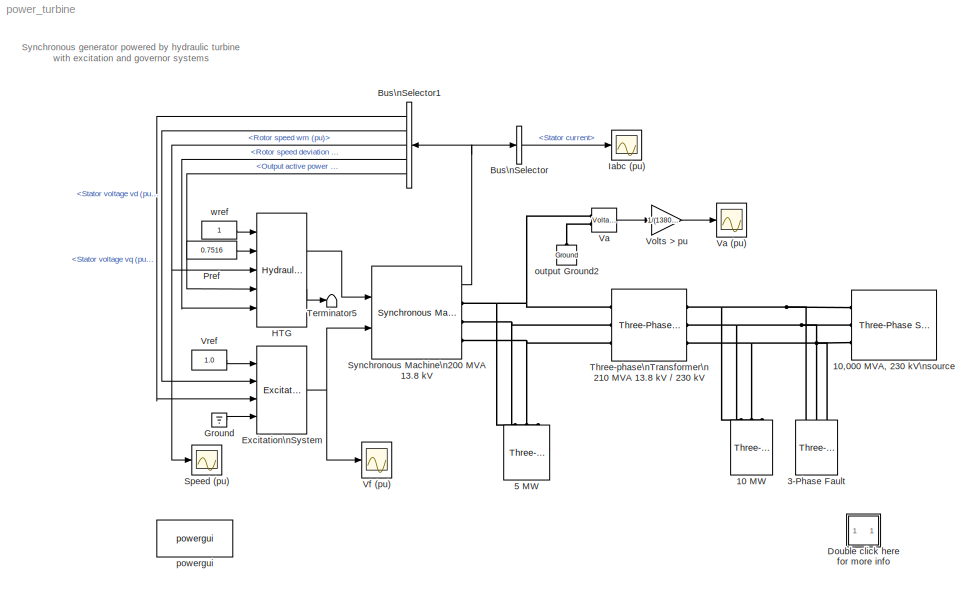
MODEL power_turbine
KIND model
BLOCK [Scope]  Iabc (pu)
  DataFormat = Array
  LimitDataPoints = off
  NumInputPorts = 1
  Ports = [1]
  SaveName = ScopeData1
  TickLabels = on
  TimeRange = 0.2
  YMax = 6
BLOCK [Scope]  Speed (pu)
  DataFormat = Array
  LimitDataPoints = off
  NumInputPorts = 1
  Ports = [1]
  SaveName = Pm
  TickLabels = on
  TimeRange = 2
  YMax = 1.02
  YMin = 0.98
BLOCK [Reference] 10 MW  REF=powerlib/Elements/Three-Phase\nParallel RLC Load
  ActivePower = 10e6
  AttributesFormatString = \\n
  CapacitivePower = 0
  Configuration = Y (grounded)
  InductivePower = 0
  LConnTagsString = A|B|C
  LeftPortType = p1
  Measurements = None
  NominalFrequency = 60
  NominalVoltage = 230e3
  PhysicalDomain = powersysdomain
  Ports = [0, 0, 0, 0, 0, 3]
  RightPortType = p1
  SourceBlock = powerlib/Elements/Three-Phase\nParallel RLC Load
  SourceType = Three-Phase Parallel RLC Load
  SubClassName = unknown
BLOCK [Reference] 10,000 MVA, 230 kV\nsource  REF=powerlib/Electrical\nSources/Three-Phase Source
  BaseVoltage = 230e3
  Frequency = 60
  Inductance = 0.0140
  InternalConnection = Yg
  PhaseAngle = 0
  Ports = [0, 0, 0, 0, 0, 0, 3]
  Resistance = 0.529
  ShortCircuitLevel = 10000e6
  ShowPortLabels = on
  SourceBlock = powerlib/Electrical\nSources/Three-Phase Source
  SourceType = Three-Phase Source
  SpecifyImpedance = on
  Voltage = 230e3
  XRratio = 10
BLOCK [Reference] 3-Phase Fault  REF=powerlib/Elements/Three-Phase Fault
  External = off
  FaultA = on
  FaultB = on
  FaultC = on
  FaultResistance = 1e-3
  GroundFault = on
  GroundResistance = 1e-3
  InitialStates = [1 1 0]
  Measurements = None
  Ports = [0, 0, 0, 0, 0, 3]
  ShowPortLabels = on
  SnubberCapacitance = inf
  SnubberResistance = inf
  SourceBlock = powerlib/Elements/Three-Phase Fault
  SourceType = Three-Phase Fault
  SwitchStatus = [1 0]
  SwitchTimes = [ 0.1 0.2]
BLOCK [Reference] 5 MW  REF=powerlib/Elements/Three-Phase\nParallel RLC Load
  ActivePower = 5e6
  AttributesFormatString = \\n
  CapacitivePower = 0
  Configuration = Y (grounded)
  InductivePower = 0
  LConnTagsString = A|B|C
  LeftPortType = p1
  Measurements = None
  NominalFrequency = 60
  NominalVoltage = 13.8e3
  PhysicalDomain = powersysdomain
  Ports = [0, 0, 0, 0, 0, 3]
  RightPortType = p1
  SourceBlock = powerlib/Elements/Three-Phase\nParallel RLC Load
  SourceType = Three-Phase Parallel RLC Load
  SubClassName = unknown
BLOCK [BusSelector] Bus\nSelector
  DialogController = Simulink.DDGSource_Bus
  OutputSignals = Stator current
  Ports = [1, 1]
BLOCK [BusSelector] Bus\nSelector1
  DialogController = Simulink.DDGSource_Bus
  OutputSignals = dq0 components.Stator voltage  vq (pu),dq0 components.Stator voltage  vd (pu),Mechanical.Rotor speed  wm  (pu),Mechanical.Rotor speed deviation  dw (pu),Output active power   Peo (pu)
  Ports = [1, 5]
BLOCK [SubSystem] Double click here for more info
  MaskDisplay = disp('?')
  MaskIconFrame = on
  MaskIconOpaque = on
  MaskIconRotate = none
  MaskIconUnits = autoscale
  MinAlgLoopOccurrences = off
  Ports = []
  RTWSystemCode = Auto
  TreatAsAtomicUnit = off
BLOCK [Reference] Excitation\nSystem  REF=powerlib/Machines/Excitation\nSystem
  Ports = [4, 1]
  ShowPortLabels = on
  SourceBlock = powerlib/Machines/Excitation\nSystem
  SourceType = Excitation System
  damp = [ 0.001, 0.1 ]
  exc = [ 1, 0 ]
  lim = [ -11.5, 11.5, 0 ]
  reg = [ 300, 0.001 ]
  sat = [ 0, 0 ]
  tgr = [ 0, 0 ]
  tr = 20e-3
  v0 = [1,1.0]
BLOCK [Ground] Ground
BLOCK [Reference] HTG  REF=powerlib/Machines/Hydraulic Turbine\nand Governor
  Ports = [5, 2]
  ShowPortLabels = on
  SourceBlock = powerlib/Machines/Hydraulic Turbine\nand Governor
  SourceType = Hydraulic Turbine and Governor
  dref = 0
  gate = [  0.01  0.97518  -0.1  0.1 ]
  hyd = [  0  2.67  ]
  po = 1
  reg = [  0.05  1.163  0.105  0  0.01  ]
  sm = [ 10/3  0.07 ]
BLOCK [Constant] Pref
  Value = 0.7516
BLOCK [Reference] Synchronous Machine\n200 MVA 13.8 kV  REF=powerlib/Machines/Synchronous Machine\npu Standard
  AttributesFormatString = \\n\\n
  InitialConditions = [0 0 0 0 0 0 0 0 1]
  LoadFlowParameters = [1 150000000 0 0]
  Mechanical = [ 3.2 0  32]
  NominalParameters = [ 200E6  13800   60 ]
  Ports = [2, 1, 0, 0, 0, 0, 3]
  PresetModel = No
  Reactances1 = [ 31 32 33 34 35 36 37 ]
  Reactances2 = [ 1.305, 0.296, 0.252, 0.474, 0.243, 0.18 ]
  RotorType = Salient-pole
  Saturation = [0.6404,0.7127,0.8441,0.9214,0.9956,1.082,1.19,1.316,1.457;0.7,0.7698,0.8872,0.9466,0.9969,1.046,1.1,1.151,1.201]
  SetSaturation = off
  ShowDetailedParameters = on
  ShowPortLabels = on
  SourceBlock = powerlib/Machines/Synchronous Machine\npu Standard
  SourceType = Synchronous Machine
  StatorResistance = 2.8544e-3
  TimeConstants1 = []
  TimeConstants2 = []
  TimeConstants3 = []
  TimeConstants4 = []
  TimeConstants5 = [ 1.01, 0.053, 0.1 ]
  TimeConstants6 = []
  TimeConstants7 = []
  TimeConstants8 = []
  Units = 0.5
  dAxisTimeConstants = Short-circuit
  qAxisTimeConstants = Open-circuit
BLOCK [Terminator] Terminator5
BLOCK [Reference] Three-phase\nTransformer\n210 MVA 13.8 kV // 230 kV  REF=powerlib/Elements/Three-Phase\nTransformer\n(Two Windings)
  AttributesFormatString = \\n
  DataFile = 'hysteresis'
  Hysteresis = off
  InitialFluxes = [ 0.8 , -0.8 , 0.7 ]
  Lm = 500
  Measurements = None
  NominalPower = [ 210e6 60 ]
  Ports = [0, 0, 0, 0, 0, 3, 3]
  Rm = 500
  Saturation = [ 0,0  ;  0.005,1.2  ;  1.0,1.4 ]
  SetInitialFlux = off
  SetSaturation = off
  ShowPortLabels = on
  SourceBlock = powerlib/Elements/Three-Phase\nTransformer\n(Two Windings)
  SourceType = Three-Phase Transformer (Two Windings)
  TransfoNumber = 0
  Winding1 = [ 13.8e3 0.0027  0.08]
  Winding1Connection = Delta (D1)
  Winding2 = [ 230e3 0.0027 0.08]
  Winding2Connection = Yg
BLOCK [Reference] Va  REF=powerlib/Measurements/Voltage Measurement
  AttributesFormatString = \\n
  OutputType = Magnitude
  PSBequivalent = 0
  PhasorSimulation = off
  Ports = [0, 1, 0, 0, 0, 2]
  ShowPortLabels = on
  SourceBlock = powerlib/Measurements/Voltage Measurement
  SourceType = Voltage Measurement
  Tag = PoWeRsYsTeMmEaSuReMeNt
BLOCK [Scope] Va (pu)
  DataFormat = Array
  LimitDataPoints = off
  NumInputPorts = 1
  Ports = [1]
  SaveName = vf
  TickLabels = on
  TimeRange = 0.2
  YMax = 1.25
  YMin = -1.25
  ZoomMode = yonly
BLOCK [Scope] Vf (pu)
  DataFormat = Array
  LimitDataPoints = off
  NumInputPorts = 1
  Ports = [1]
  SaveName = vf
  TickLabels = on
  TimeRange = 2
  YMax = 15
  YMin = -10
  ZoomMode = yonly
BLOCK [Gain] Volts > pu
  Gain = 1/(13800/sqrt(3)*sqrt(2))
BLOCK [Constant] Vref
  Value = 1.0
BLOCK [Reference] output Ground2  REF=powerlib/Elements/Ground
  AttributesFormatString = \\n
  LConnTagsString = a
  LeftPortType = p1
  PhysicalDomain = powersysdomain
  Ports = [0, 0, 0, 0, 0, 1]
  RightPortType = p1
  SourceBlock = powerlib/Elements/Ground
  SourceType = Ground
  SubClassName = unknown
BLOCK [Reference] powergui  REF=powerlib/powergui
  DisplayStyle = off
  Frange = logspace(0,3,50)
  FreqAxis = off
  MaxFrequency = 1000
  Ports = []
  Priority = 2
  RmsSteady = 1
  ShowPortLabels = on
  SourceBlock = powerlib/powergui
  SourceType = PSB option menu block
  StartTime = 0.0
  Ts = 0
  Xlog = off
  Ylog = off
  ZoomFFT = on
  cycles = 2
  display = off
  echomessages = on
  frequency = 60
  frequencyindice = 60
  frequencyindicesteady = 1
  fundamental = 60
  methode = off
  save = off
  variable = ZData
BLOCK [Constant] wref
ANNOTATION (root): Synchronous generator powered by hydraulic turbine\n with excitation and governor systems
ANNOTATION Double click here for more info: 1
ANNOTATION Double click here for more info: 2
ANNOTATION Double click here for more info: 3
ANNOTATION Double click here for more info: 4
ANNOTATION Double click here for more info: A three-phase generator rated 200 MVA, 13.8 kV, 112.5 rpm is connected to a 230 kV, 10,000 MVA network through a Delta-Wye 210 MVA transformer. \nAt t = 0.1 s, a three-phase to ground fault occurs on the 230 kV bus. The fault is cleared after 6 cycles (t = 0.2 s). \nDuring this demo, you will initialize the system in order to start in steady-state with the generator supplying 150 MW of active powe...<+91ch>
ANNOTATION Double click here for more info: Circuit Description
ANNOTATION Double click here for more info: Demonstration
ANNOTATION Double click here for more info: In order to start the simulation in steady state with the HTG and excitation system connected, these two Simulink blocks must also be initialized\naccording to the values calculated by the load flow. This initialization is automatically performed when you execute the Load Flow, as long as you connect at\nthe Pm and Vf inputs of the machine either Constant blocks or regulation blocks from the machi...<+339ch>
ANNOTATION Double click here for more info: In order to start the simulation in steady-state you must initialize the synchronous machine for the desired load flow. \nOpen the Powergui and select 'Load Flow and Machine Initialization' . A new window appears. The machine 'Bus type' should be already initialized as\n'PV generator', indicating that the load flow will be performed with the machine controlling the active power and its terminal vo...<+74ch>
ANNOTATION Double click here for more info: Load flow : Terminal voltage (Vrms) = 13800; Active Power = 150e6. Then press the 'Execute Load Flow' button.
ANNOTATION Double click here for more info: Louis-A. Dessaint and R. Champagne (Ecole de Technologie Superieure, Montreal)
ANNOTATION Double click here for more info: Once the load flow has been solved the phasors of AB and BC machine voltages as well as the currents flowing out of phases A and B are updated.\nThe machine reactive power, mechanical power and field voltage requested to supply the electrical power should also be displayed: \nQ = 3.4 Mvar; Pmec = 150.32 MW (0.7516 pu); field voltage Ef = 1.291 pu.
ANNOTATION Double click here for more info: Open the 4 scopes and restart the simulation. The simulation now starts in steady state.\nObserve that the terminal voltage Va is 1.0 p.u. at the beginning of the simulation. It falls to about 0.4 pu during the fault and returns to nominal \nquickly after the fault is cleared. This quick response in terminal voltage is due to the fact that the Excitation System output Vf can go as high as 11.5 pu\...<+329ch>
ANNOTATION Double click here for more info: Start Simulation and observe the three machine currents on the Iabc scope. If the 9 parameters defining initial conditions \nfor the Synchronous Machine are set at zero or not set correctly, the simulation will not start in steady state.
ANNOTATION Double click here for more info: This demonstration illustrates use of the synchronous machine associated with\nthe Hydraulic Turbine and Governor (HTG) and Excitation System blocks and use of\nthe Load Flow to initialize machine currents
LINE Bus\nSelector1:1 -> Excitation\nSystem:3
LINE Bus\nSelector1:2 -> Excitation\nSystem:2
NET Bus\nSelector1:3 ->  Speed (pu):1, HTG:3
LINE Bus\nSelector1:4 -> HTG:5
LINE Bus\nSelector1:5 -> HTG:4
LINE Bus\nSelector:1 ->  Iabc (pu):1
NET Excitation\nSystem:1 -> Synchronous Machine\n200 MVA 13.8 kV:2, Vf (pu):1
LINE Ground:1 -> Excitation\nSystem:4
LINE HTG:1 -> Synchronous Machine\n200 MVA 13.8 kV:1
LINE HTG:2 -> Terminator5:1
LINE Pref:1 -> HTG:2
NET Synchronous Machine\n200 MVA 13.8 kV:1 -> Bus\nSelector1:1, Bus\nSelector:1
LINE Va:1 -> Volts > pu:1
LINE Volts > pu:1 -> Va (pu):1
LINE Vref:1 -> Excitation\nSystem:1
LINE wref:1 -> HTG:1
PNET net1: 10 MW:LConn1 -- 10,000 MVA, 230 kV\nsource:RConn1 -- 3-Phase Fault:LConn1 -- Three-phase\nTransformer\n210 MVA 13.8 kV // 230 kV:RConn1
PNET net2: 10 MW:LConn2 -- 10,000 MVA, 230 kV\nsource:RConn2 -- 3-Phase Fault:LConn2 -- Three-phase\nTransformer\n210 MVA 13.8 kV // 230 kV:RConn2
PNET net3: 10 MW:LConn3 -- 10,000 MVA, 230 kV\nsource:RConn3 -- 3-Phase Fault:LConn3 -- Three-phase\nTransformer\n210 MVA 13.8 kV // 230 kV:RConn3
PNET net4: 5 MW:LConn1 -- Synchronous Machine\n200 MVA 13.8 kV:RConn1 -- Three-phase\nTransformer\n210 MVA 13.8 kV // 230 kV:LConn1 -- Va:LConn1
PNET net5: 5 MW:LConn2 -- Synchronous Machine\n200 MVA 13.8 kV:RConn2 -- Three-phase\nTransformer\n210 MVA 13.8 kV // 230 kV:LConn2
PNET net6: 5 MW:LConn3 -- Synchronous Machine\n200 MVA 13.8 kV:RConn3 -- Three-phase\nTransformer\n210 MVA 13.8 kV // 230 kV:LConn3
PLINE Va:LConn2 -- output Ground2:LConn1
note: NET lines group one-source signal fan-out (src -> all destinations, sorted); 1:1 wires keep LINE; PNET lines group multi-terminal physical nets as a canonical sorted terminal list (undirected conserving connections); 2-terminal nets keep the pairwise PLINE form
